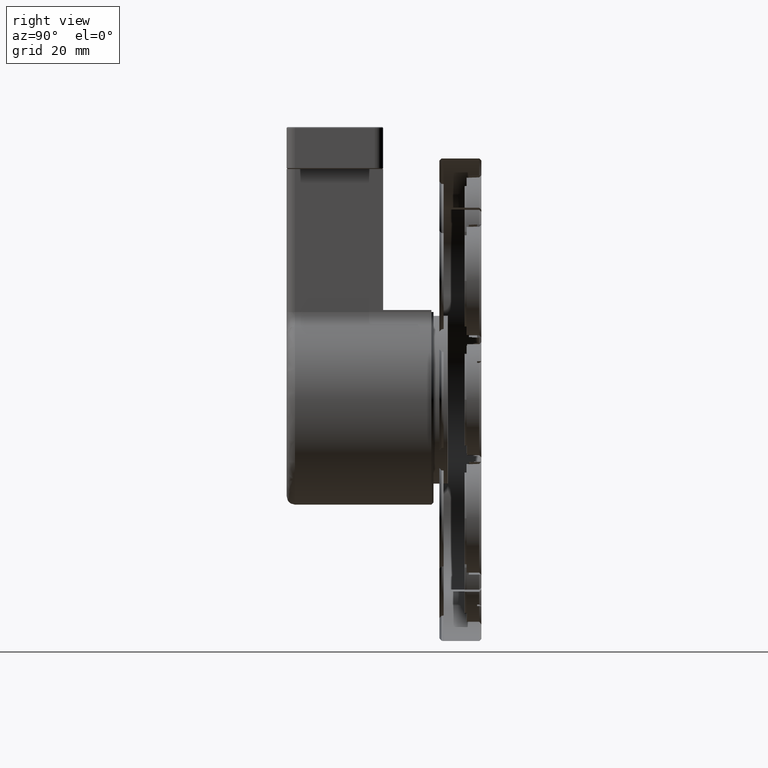
[diagram: clean part render]
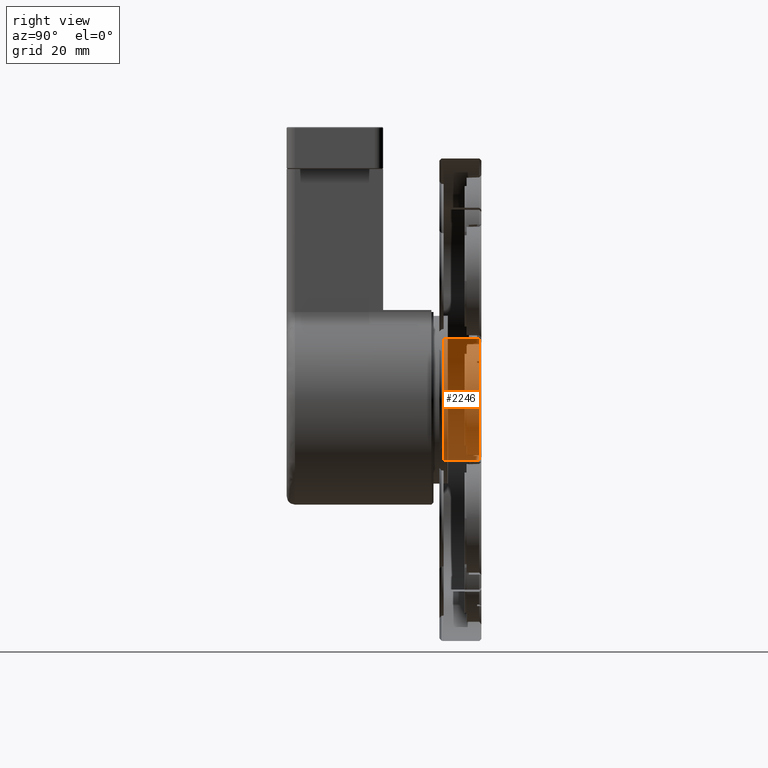
[diagram: same view with one face highlighted and labeled with its STEP entity id]
A machine part, right view. The second image highlights one B-rep face of the part: STEP entity #2246.
In plain terms, the highlighted cylindrical surface (partial cylindrical patch) has radius 17.5 mm, axis along (-0, 1, 0).
Its self-contained STEP definition (entity closure, byte-faithful):
#236 = CARTESIAN_POINT ( 'NONE',  ( 21.26610320947998645, 31.75879132876270461, 84.56310887873458171 ) ) ;
#1042 = CARTESIAN_POINT ( 'NONE',  ( 21.26610320954092614, 31.75879132876270461, 55.43689112147328046 ) ) ;
#1237 = EDGE_LOOP ( 'NONE', ( #6223, #7176, #8886, #17424, #14175 ) ) ;
#1240 = DIRECTION ( 'NONE',  ( 3.488278094132890012E-29, -1.000000000000000000, -0.000000000000000000 ) ) ;
#1988 = VECTOR ( 'NONE', #2580, 1000.000000000000000 ) ;
#2246 = ADVANCED_FACE ( 'NONE', ( #2297 ), #14033, .F. ) ;
#2256 = CARTESIAN_POINT ( 'NONE',  ( 29.06219369894980886, 31.75879132876270461, 70.00000000006038192 ) ) ;
#2297 = FACE_OUTER_BOUND ( 'NONE', #1237, .T. ) ;
#2536 = VERTEX_POINT ( 'NONE', #236 ) ;
#2580 = DIRECTION ( 'NONE',  ( -3.488278094132890012E-29, 1.000000000000000000, 0.000000000000000000 ) ) ;
#2771 = EDGE_CURVE ( 'NONE', #9092, #4280, #5304, .T. ) ;
#2867 = CARTESIAN_POINT ( 'NONE',  ( 11.56219369894980353, 31.75879132876270461, 70.00000000008361667 ) ) ;
#4280 = VERTEX_POINT ( 'NONE', #17022 ) ;
#4364 = EDGE_CURVE ( 'NONE', #8393, #15212, #12404, .T. ) ;
#4520 = EDGE_CURVE ( 'NONE', #4280, #2536, #15857, .T. ) ;
#4584 = EDGE_CURVE ( 'NONE', #15212, #2536, #14568, .T. ) ;
#5160 = DIRECTION ( 'NONE',  ( 3.488278094132890012E-29, -1.000000000000000000, -0.000000000000000000 ) ) ;
#5181 = CARTESIAN_POINT ( 'NONE',  ( 11.56219369894980353, 31.75879132876270461, 70.00000000008361667 ) ) ;
#5249 = CARTESIAN_POINT ( 'NONE',  ( 11.56219369894980353, 40.25879132876270461, 70.00000000008361667 ) ) ;
#5304 = CIRCLE ( 'NONE', #5607, 17.50000000000000000 ) ;
#5607 = AXIS2_PLACEMENT_3D ( 'NONE', #5249, #5160, #11127 ) ;
#6118 = DIRECTION ( 'NONE',  ( -1.000000000000000000, 0.000000000000000000, -1.586032892321652285E-15 ) ) ;
#6223 = ORIENTED_EDGE ( 'NONE', *, *, #2771, .F. ) ;
#6713 = DIRECTION ( 'NONE',  ( -3.488278094132890012E-29, 1.000000000000000000, 0.000000000000000000 ) ) ;
#7055 = EDGE_CURVE ( 'NONE', #8393, #9092, #14216, .T. ) ;
#7176 = ORIENTED_EDGE ( 'NONE', *, *, #7055, .F. ) ;
#7318 = CARTESIAN_POINT ( 'NONE',  ( 21.26610320954090838, 31.75879132876270461, 55.43689112147329467 ) ) ;
#8393 = VERTEX_POINT ( 'NONE', #7318 ) ;
#8886 = ORIENTED_EDGE ( 'NONE', *, *, #4364, .T. ) ;
#9092 = VERTEX_POINT ( 'NONE', #14137 ) ;
#10214 = AXIS2_PLACEMENT_3D ( 'NONE', #5181, #6713, #12599 ) ;
#10641 = CARTESIAN_POINT ( 'NONE',  ( 11.56219369894980353, 31.75879132876270461, 70.00000000008361667 ) ) ;
#11127 = DIRECTION ( 'NONE',  ( -1.000000000000000000, 0.000000000000000000, 0.000000000000000000 ) ) ;
#12115 = AXIS2_PLACEMENT_3D ( 'NONE', #2867, #1240, #13062 ) ;
#12404 = CIRCLE ( 'NONE', #12115, 17.50000000000000000 ) ;
#12599 = DIRECTION ( 'NONE',  ( -1.000000000000000000, 0.000000000000000000, 0.000000000000000000 ) ) ;
#13062 = DIRECTION ( 'NONE',  ( -1.000000000000000000, 0.000000000000000000, 1.586032892321652285E-15 ) ) ;
#14033 = CYLINDRICAL_SURFACE ( 'NONE', #10214, 17.50000000000000000 ) ;
#14137 = CARTESIAN_POINT ( 'NONE',  ( 21.26610320954091549, 40.25879132876270461, 55.43689112147330178 ) ) ;
#14175 = ORIENTED_EDGE ( 'NONE', *, *, #4520, .F. ) ;
#14216 = LINE ( 'NONE', #1042, #1988 ) ;
#14568 = CIRCLE ( 'NONE', #17014, 17.50000000000000000 ) ;
#14983 = CARTESIAN_POINT ( 'NONE',  ( 21.26610320947998289, 31.75879132876270461, 84.56310887873458171 ) ) ;
#15168 = DIRECTION ( 'NONE',  ( 3.488278094132890012E-29, -1.000000000000000000, -0.000000000000000000 ) ) ;
#15212 = VERTEX_POINT ( 'NONE', #2256 ) ;
#15857 = LINE ( 'NONE', #14983, #18254 ) ;
#17014 = AXIS2_PLACEMENT_3D ( 'NONE', #10641, #15168, #6118 ) ;
#17022 = CARTESIAN_POINT ( 'NONE',  ( 21.26610320947998645, 40.25879132876270461, 84.56310887873456750 ) ) ;
#17424 = ORIENTED_EDGE ( 'NONE', *, *, #4584, .T. ) ;
#17759 = DIRECTION ( 'NONE',  ( 3.488278094132890012E-29, -1.000000000000000000, 0.000000000000000000 ) ) ;
#18254 = VECTOR ( 'NONE', #17759, 1000.000000000000000 ) ;